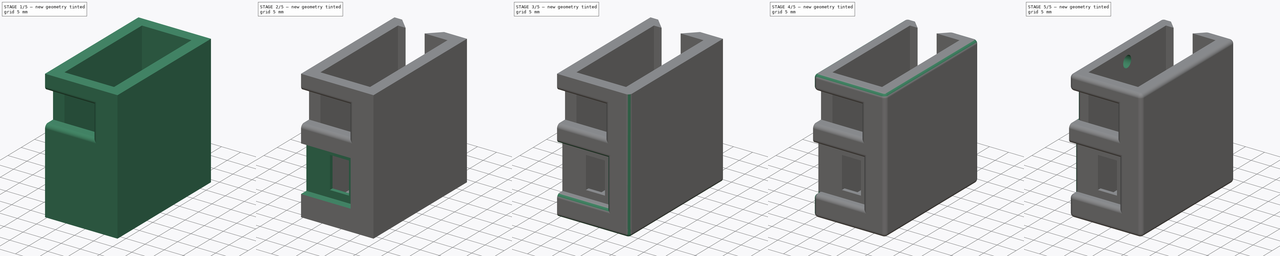
[diagram: build sequence overview — one tinted view per stage of 5, left to right]
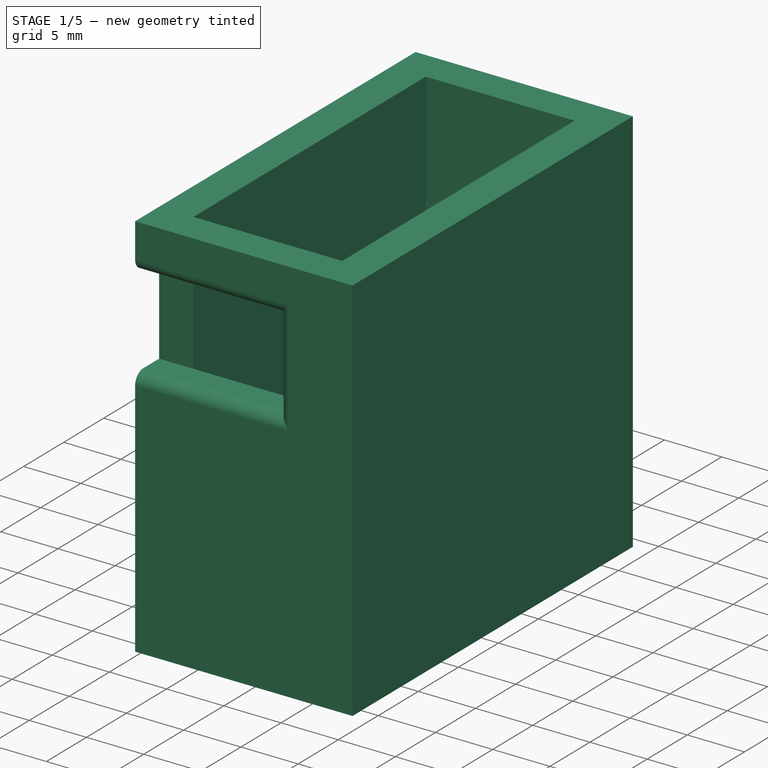
[diagram: stage 1 of 5 — iso view after this stage's code; geometry added in this stage tinted green]
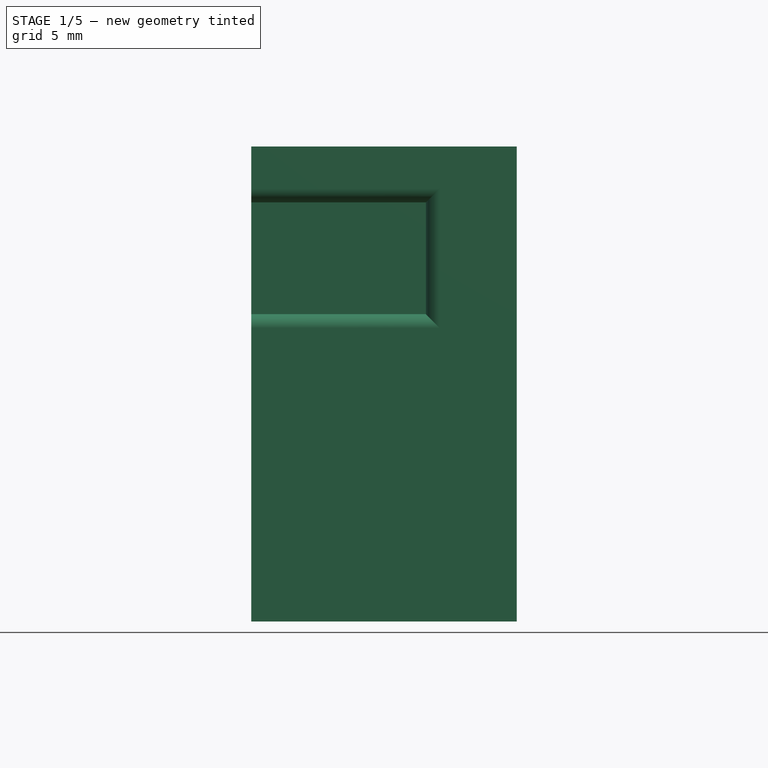
[diagram: stage 1 of 5 — front view after this stage's code; geometry added in this stage tinted green]
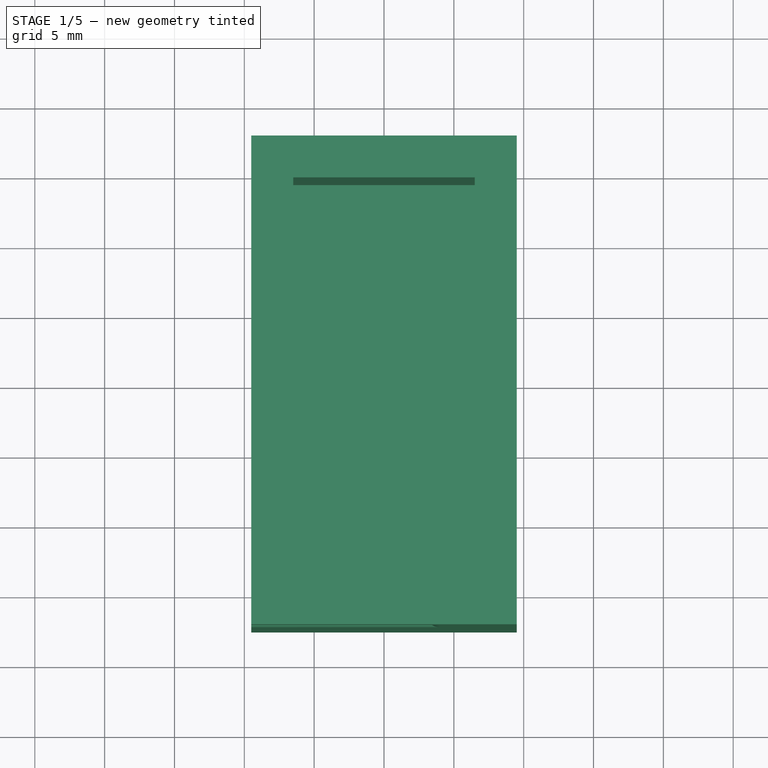
[diagram: stage 1 of 5 — top view after this stage's code; geometry added in this stage tinted green]
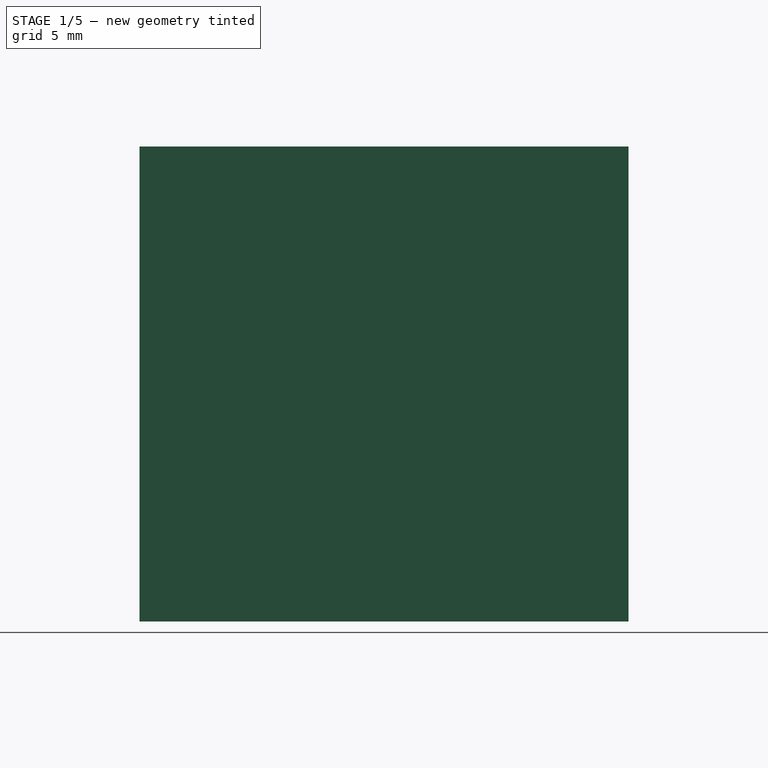
[diagram: stage 1 of 5 — right view after this stage's code; geometry added in this stage tinted green]
FCSTD DOCUMENT  (FreeCAD 0.19R24366 (Git))
Label: Mic Case
License: All rights reserved
LicenseURL: http://en.wikipedia.org/wiki/All_rights_reserved
objects: PartDesign::Fillet×10, Sketcher::SketchObject×7, PartDesign::Pocket×5, PartDesign::Pad×2, PartDesign::Chamfer×2, PartDesign::Body×1
note: 46 computed .brp shape members not serialized (recipe doc carries the construction recipe); baked Part::Feature solids carry a one-line shape summary decoded from their .brp

FEATURE [Sketcher::SketchObject] Sketch
  FullyConstrained = true
  MapMode = 5
  Support = -> [XY_Plane]
  sketch-geometry (4):
    g0: LineSegment StartX=-9.5 StartY=17.5 StartZ=0 EndX=9.5 EndY=17.5 EndZ=0
    g1: LineSegment StartX=9.5 StartY=17.5 StartZ=0 EndX=9.5 EndY=-17.5 EndZ=0
    g2: LineSegment StartX=9.5 StartY=-17.5 StartZ=0 EndX=-9.5 EndY=-17.5 EndZ=0
    g3: LineSegment StartX=-9.5 StartY=-17.5 StartZ=0 EndX=-9.5 EndY=17.5 EndZ=0
  constraints (11):
    c: Coincident(g0,g1)
    c: Coincident(g1,g2)
    c: Coincident(g2,g3)
    c: Coincident(g3,g0)
    c: Horizontal(g0)
    c: Horizontal(g2)
    c: Vertical(g1)
    c: Vertical(g3)
    c: Symmetric(g2,g0,g-1)
    c: DistanceY(g1,g1) = 35
    c: DistanceX(g0,g0) = 19
FEATURE [PartDesign::Pad] Pad  label="Bottom"
  Direction = (1,1,1)
  Length = 2
  Length2 = 100
  Profile = -> Sketch
  Type = 0
FEATURE [Sketcher::SketchObject] Sketch001
  ExternalGeometry = -> [Pad]
  FullyConstrained = true
  MapMode = 5
  Placement = pos=(0,0,2) rot=(0,0,1;0rad)
  Support = -> [Pad]
  sketch-geometry (8):
    g0: LineSegment StartX=-6.5 StartY=14.5 StartZ=0 EndX=6.5 EndY=14.5 EndZ=0
    g1: LineSegment StartX=6.5 StartY=14.5 StartZ=0 EndX=6.5 EndY=-14.5 EndZ=0
    g2: LineSegment StartX=6.5 StartY=-14.5 StartZ=0 EndX=-6.5 EndY=-14.5 EndZ=0
    g3: LineSegment StartX=-6.5 StartY=-14.5 StartZ=0 EndX=-6.5 EndY=14.5 EndZ=0
    g4: LineSegment StartX=-9.5 StartY=17.5 StartZ=0 EndX=9.5 EndY=17.5 EndZ=0
    g5: LineSegment StartX=9.5 StartY=17.5 StartZ=0 EndX=9.5 EndY=-17.5 EndZ=0
    g6: LineSegment StartX=9.5 StartY=-17.5 StartZ=0 EndX=-9.5 EndY=-17.5 EndZ=0
    g7: LineSegment StartX=-9.5 StartY=-17.5 StartZ=0 EndX=-9.5 EndY=17.5 EndZ=0
  constraints (21):
    c: Coincident(g0,g1)
    c: Coincident(g1,g2)
    c: Coincident(g2,g3)
    c: Coincident(g3,g0)
    c: Horizontal(g0)
    c: Horizontal(g2)
    c: Vertical(g1)
    c: Vertical(g3)
    c: Symmetric(g2,g0,g-1)
    c: DistanceX(g0,g0) = 13
    c: DistanceY(g1,g1) = 29
    c: Coincident(g4,g5)
    c: Coincident(g5,g6)
    c: Coincident(g6,g7)
    c: Coincident(g7,g4)
    c: Horizontal(g4)
    c: Horizontal(g6)
    c: Vertical(g5)
    c: Vertical(g7)
    c: Coincident(g4,g-6)
    c: Coincident(g5,g-5)
FEATURE [PartDesign::Pad] Pad001  label="Main Body"
  BaseFeature = -> Pad
  Direction = (1,1,1)
  Length = 32
  Length2 = 100
  Profile = -> Sketch001
  Type = 0
FEATURE [Sketcher::SketchObject] Sketch002
  ExternalGeometry = -> [Pad001]
  FullyConstrained = true
  MapMode = 5
  Placement = pos=(0,-17.5,0) rot=(1,0,0;1.5708rad)
  Support = -> [Pad001]
  sketch-geometry (7):
    g0: LineSegment StartX=-5 StartY=2 StartZ=0 EndX=-5 EndY=26 EndZ=0
    g1: LineSegment StartX=-9.5 StartY=30 StartZ=0 EndX=3 EndY=30 EndZ=0
    g2: LineSegment StartX=3 StartY=30 StartZ=0 EndX=3 EndY=22 EndZ=0
    g3: LineSegment StartX=3 StartY=22 StartZ=0 EndX=-9.5 EndY=22 EndZ=0
    g4: LineSegment StartX=-9.5 StartY=22 StartZ=0 EndX=-9.5 EndY=30 EndZ=0
    g5: GeomPoint X=3 Y=26 Z=0
    g6: LineSegment StartX=-5 StartY=26 StartZ=0 EndX=3 EndY=26 EndZ=0
  constraints (19):
    c: PointOnObject(g0,g-3)
    c: Vertical(g0)
    c: DistanceY(g0,g0) = 24
    c: DistanceX(g-3,g0) = 4.5
    c: Coincident(g1,g2)
    c: Coincident(g2,g3)
    c: Coincident(g3,g4)
    c: Coincident(g4,g1)
    c: Horizontal(g1)
    c: Horizontal(g3)
    c: Vertical(g2)
    c: Vertical(g4)
    c: PointOnObject(g1,g-4)
    c: DistanceY(g4,g4) = 8
    c: Symmetric(g2,g1,g5)
    c: Coincident(g6,g0)
    c: Coincident(g6,g5)
    c: Horizontal(g6)
    c: DistanceX(g6,g6) = 8
FEATURE [PartDesign::Pocket] Pocket  label="Headphone Cutout"
  BaseFeature = -> Pad001
  Length = 3
  Length2 = 100
  Profile = -> Sketch002
  Type = 0
FEATURE [PartDesign::Fillet] Fillet
  Base = -> Pocket [Edge30,Edge31,Edge29]
  BaseFeature = -> Pocket
  Radius = 1
  SupportTransform = false
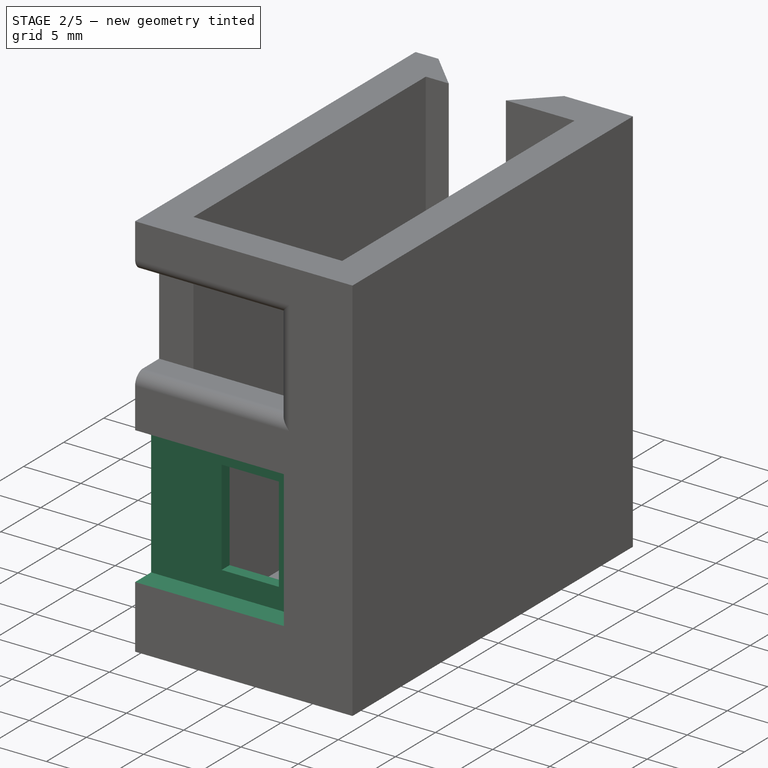
[diagram: stage 2 of 5 — iso view after this stage's code; geometry added in this stage tinted green]
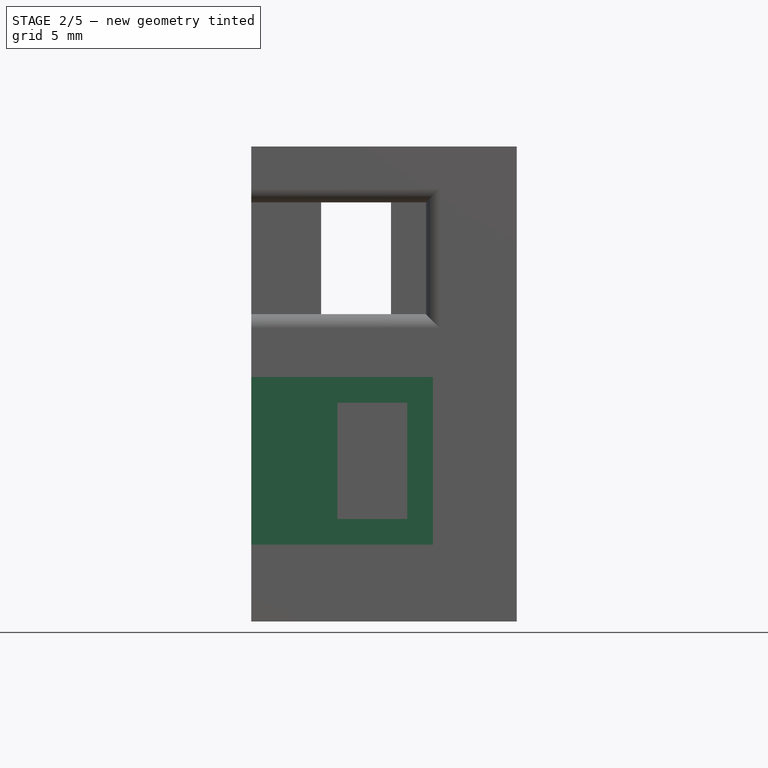
[diagram: stage 2 of 5 — front view after this stage's code; geometry added in this stage tinted green]
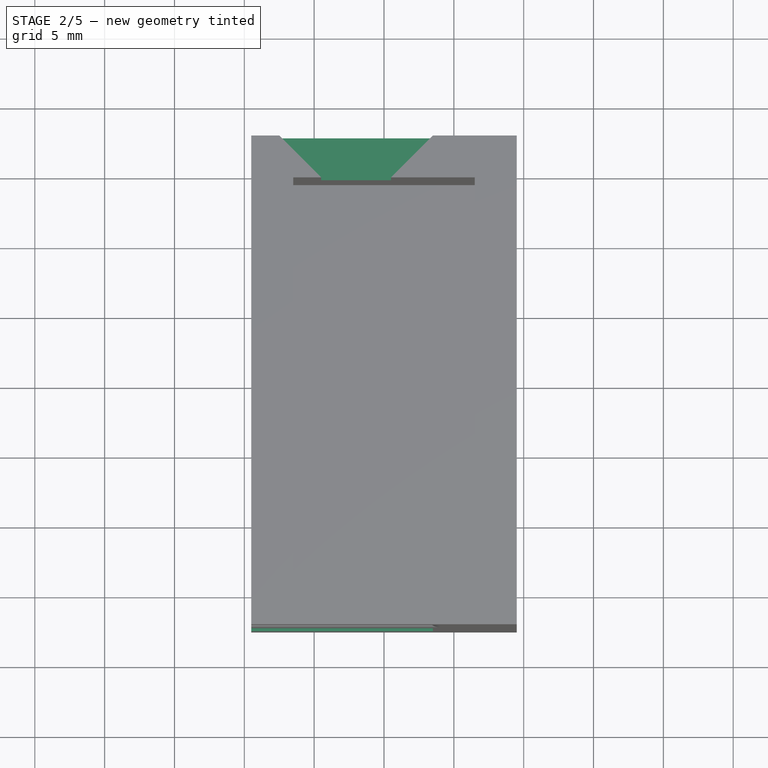
[diagram: stage 2 of 5 — top view after this stage's code; geometry added in this stage tinted green]
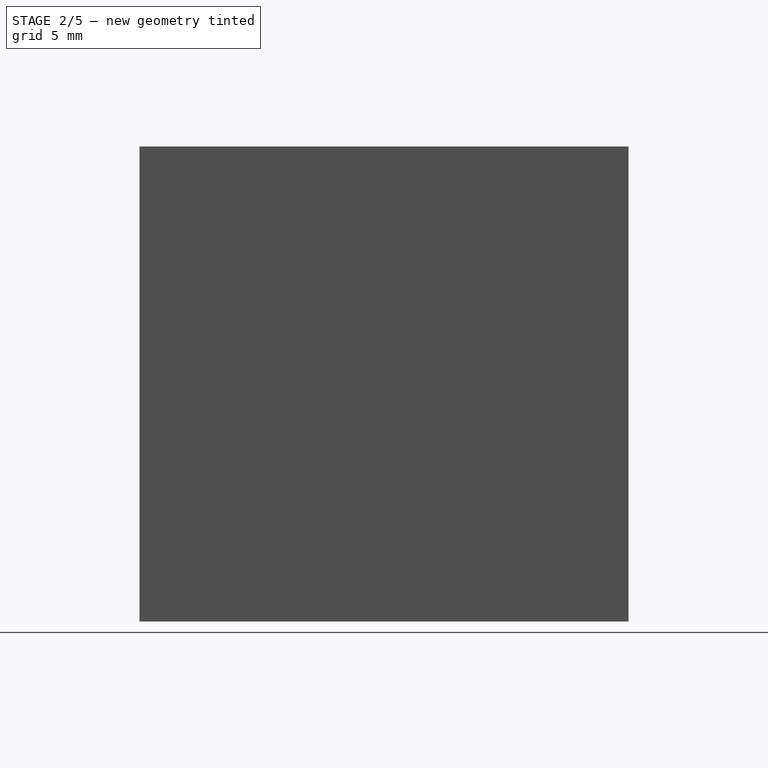
[diagram: stage 2 of 5 — right view after this stage's code; geometry added in this stage tinted green]
FEATURE [Sketcher::SketchObject] Sketch003
  ExternalGeometry = -> [Fillet]
  FullyConstrained = true
  MapMode = 5
  Placement = pos=(0,-17.5,0) rot=(1,0,0;1.5708rad)
  Support = -> [Fillet]
  sketch-geometry (7):
    g0: LineSegment StartX=-3.15 StartY=2 StartZ=0 EndX=-3.15 EndY=11.5 EndZ=0
    g1: LineSegment StartX=-9.5 StartY=17.5 StartZ=0 EndX=3.5 EndY=17.5 EndZ=0
    g2: LineSegment StartX=3.5 StartY=17.5 StartZ=0 EndX=3.5 EndY=5.5 EndZ=0
    g3: LineSegment StartX=3.5 StartY=5.5 StartZ=0 EndX=-9.5 EndY=5.5 EndZ=0
    g4: LineSegment StartX=-9.5 StartY=5.5 StartZ=0 EndX=-9.5 EndY=17.5 EndZ=0
    g5: LineSegment StartX=-3.15 StartY=11.5 StartZ=0 EndX=3.5 EndY=17.5 EndZ=0
    g6: LineSegment StartX=-3.15 StartY=11.5 StartZ=0 EndX=3.5 EndY=5.5 EndZ=0
  constraints (20):
    c: PointOnObject(g0,g-3)
    c: Vertical(g0)
    c: DistanceY(g0,g0) = 9.5
    c: Coincident(g1,g2)
    c: Coincident(g2,g3)
    c: Coincident(g3,g4)
    c: Coincident(g4,g1)
    c: Horizontal(g1)
    c: Horizontal(g3)
    c: Vertical(g2)
    c: Vertical(g4)
    c: PointOnObject(g1,g-4)
    c: DistanceX(g1,g1) = 13
    c: DistanceY(g2,g2) = 12
    c: Coincident(g5,g0)
    c: Coincident(g5,g1)
    c: Coincident(g6,g5)
    c: Coincident(g6,g2)
    c: Equal(g5,g6)
    c: DistanceX(g-4,g0) = 6.35
FEATURE [PartDesign::Pocket] Pocket001  label="USB Outer Pocket"
  BaseFeature = -> Fillet
  Length = 2
  Length2 = 100
  Profile = -> Sketch003
  Type = 0
FEATURE [Sketcher::SketchObject] Sketch004
  ExternalGeometry = -> [Pocket001]
  FullyConstrained = true
  MapMode = 5
  Placement = pos=(0,-15.5,4.7e-15) rot=(1,0,0;1.5708rad)
  Support = -> [Pocket001]
  sketch-geometry (6):
    g0: LineSegment StartX=-3.33848 StartY=15.6615 StartZ=0 EndX=1.66152 EndY=15.6615 EndZ=0
    g1: LineSegment StartX=1.66152 StartY=15.6615 StartZ=0 EndX=1.66152 EndY=7.33848 EndZ=0
    g2: LineSegment StartX=1.66152 StartY=7.33848 StartZ=0 EndX=-3.33848 EndY=7.33848 EndZ=0
    g3: LineSegment StartX=-3.33848 StartY=7.33848 StartZ=0 EndX=-3.33848 EndY=15.6615 EndZ=0
    g4: LineSegment StartX=1.66152 StartY=15.6615 StartZ=0 EndX=3.5 EndY=17.5 EndZ=0
    g5: LineSegment StartX=1.66152 StartY=7.33848 StartZ=0 EndX=3.5 EndY=5.5 EndZ=0
  constraints (16):
    c: Coincident(g1,g2)
    c: Coincident(g2,g3)
    c: Coincident(g3,g0)
    c: Horizontal(g0)
    c: Horizontal(g2)
    c: Vertical(g3)
    c: DistanceX(g0,g0) = 5
    c: Coincident(g5,g1)
    c: Coincident(g5,g-5)
    c: Equal(g5,g4)
    c: Vertical(g1)
    c: Coincident(g1,g0)
    c: Coincident(g1,g4)
    c: Coincident(g4,g-4)
    c: Distance(g4) = 2.6
    c: Angle(g4,g-3) = 0.785398
FEATURE [PartDesign::Pocket] Pocket002  label="USB Inner Cutout"
  BaseFeature = -> Pocket001
  Length = 1
  Length2 = 100
  Profile = -> Sketch004
  Type = 0
FEATURE [Sketcher::SketchObject] Sketch005
  ExternalGeometry = -> [Pocket002]
  FullyConstrained = true
  MapMode = 5
  Placement = pos=(0,17.5,0) rot=(0,0.707107,0.707107;3.14159rad)
  Support = -> [Pocket002]
  sketch-geometry (4):
    g0: LineSegment StartX=-0.5 StartY=34 StartZ=0 EndX=4.5 EndY=34 EndZ=0
    g1: LineSegment StartX=4.5 StartY=34 StartZ=0 EndX=4.5 EndY=22 EndZ=0
    g2: LineSegment StartX=4.5 StartY=22 StartZ=0 EndX=-0.5 EndY=22 EndZ=0
    g3: LineSegment StartX=-0.5 StartY=22 StartZ=0 EndX=-0.5 EndY=34 EndZ=0
  constraints (12):
    c: Coincident(g0,g1)
    c: Coincident(g1,g2)
    c: Coincident(g2,g3)
    c: Coincident(g3,g0)
    c: Horizontal(g0)
    c: Horizontal(g2)
    c: Vertical(g1)
    c: Vertical(g3)
    c: PointOnObject(g0,g-3)
    c: DistanceX(g0,g-3) = 5
    c: DistanceX(g0,g0) = 5
    c: DistanceY(g1,g1) = 12
FEATURE [PartDesign::Pocket] Pocket003  label="Switch Cutout"
  BaseFeature = -> Pocket002
  Length = 3
  Length2 = 100
  Profile = -> Sketch005
  Type = 0
FEATURE [PartDesign::Chamfer] Chamfer
  Angle = 45
  Base = -> Pocket003 [Edge50,Edge52]
  BaseFeature = -> Pocket003
  ChamferType = 0
  FlipDirection = false
  Size = 2.999
  Size2 = 1
  SupportTransform = false
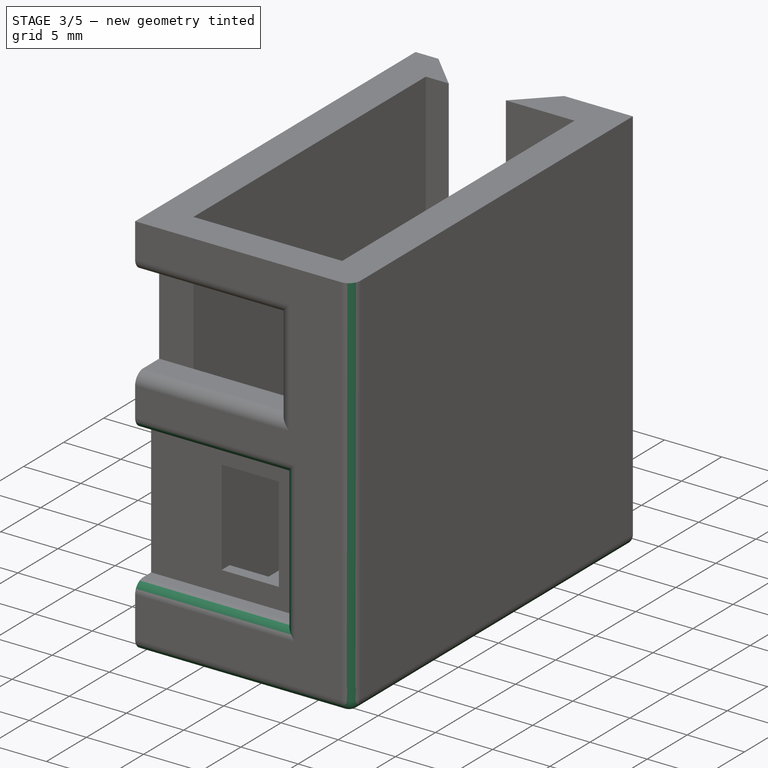
[diagram: stage 3 of 5 — iso view after this stage's code; geometry added in this stage tinted green]
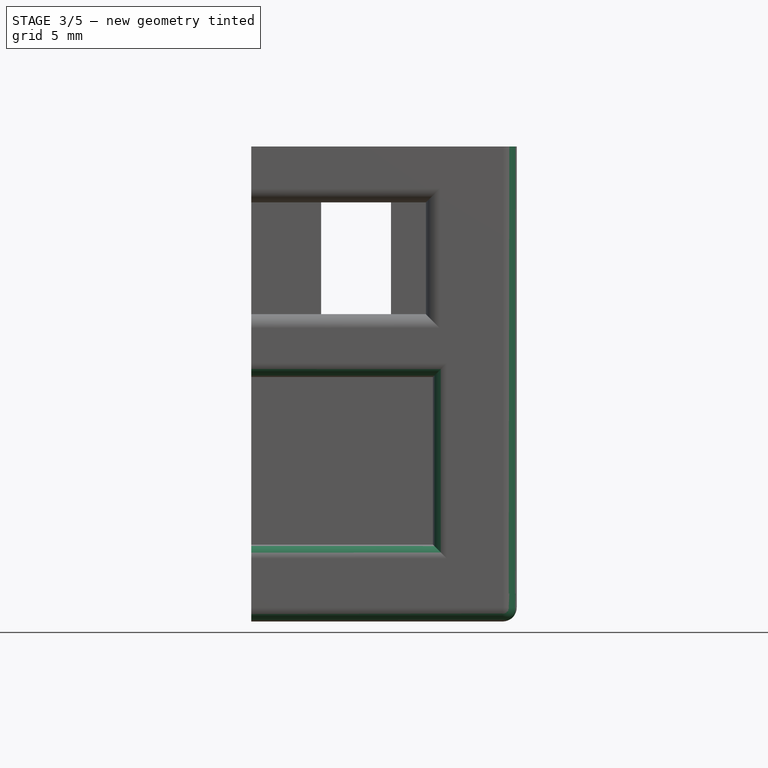
[diagram: stage 3 of 5 — front view after this stage's code; geometry added in this stage tinted green]
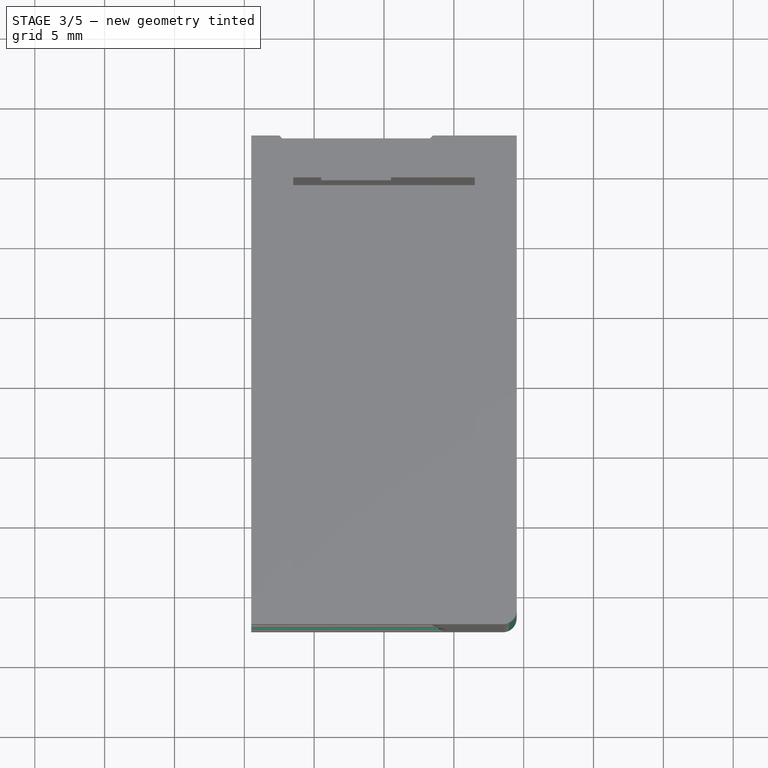
[diagram: stage 3 of 5 — top view after this stage's code; geometry added in this stage tinted green]
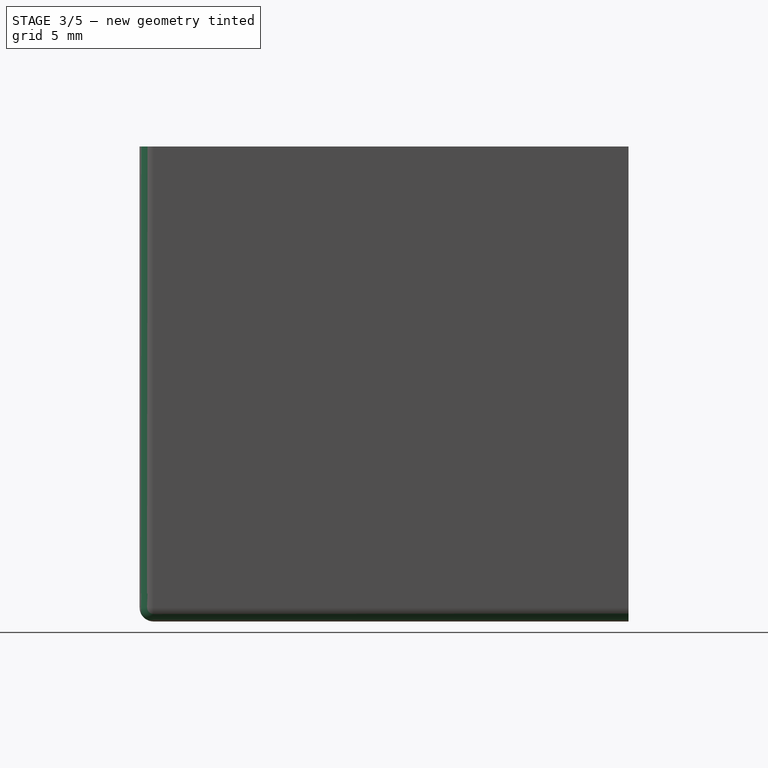
[diagram: stage 3 of 5 — right view after this stage's code; geometry added in this stage tinted green]
FEATURE [PartDesign::Fillet] Fillet001
  Base = -> Chamfer [Edge50,Edge49,Edge48]
  BaseFeature = -> Chamfer
  Radius = 1
  SupportTransform = false
FEATURE [PartDesign::Fillet] Fillet002
  Base = -> Fillet001 [Edge73]
  BaseFeature = -> Fillet001
  Radius = 1
  SupportTransform = false
FEATURE [PartDesign::Fillet] Fillet003
  Base = -> Fillet002 [Edge26]
  BaseFeature = -> Fillet002
  Radius = 1
  SupportTransform = false
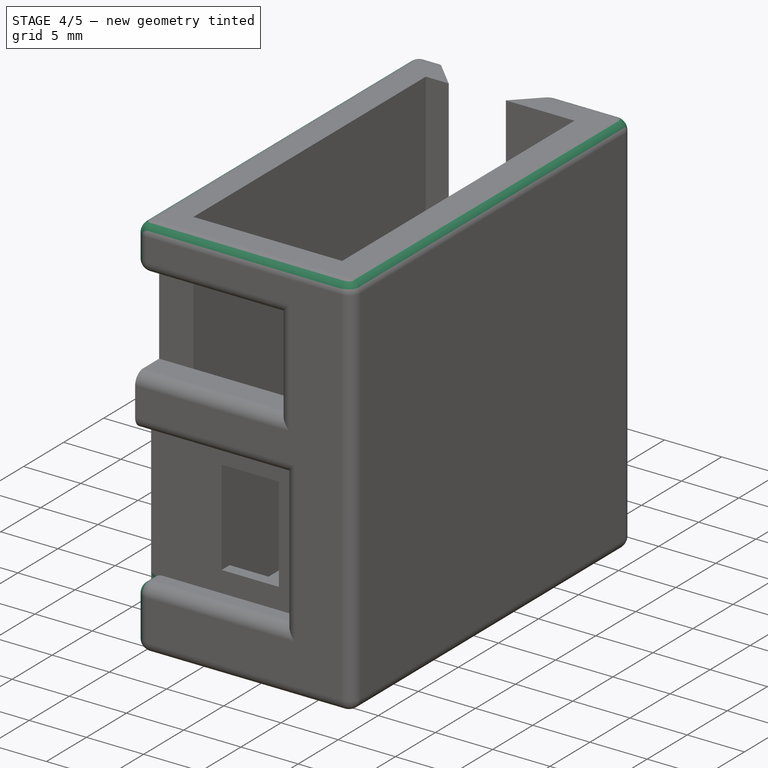
[diagram: stage 4 of 5 — iso view after this stage's code; geometry added in this stage tinted green]
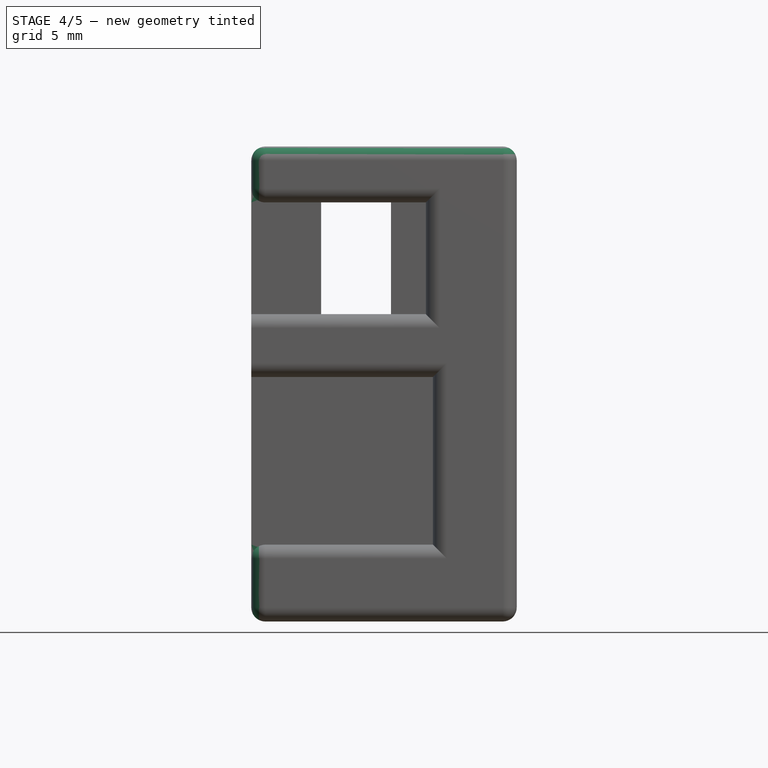
[diagram: stage 4 of 5 — front view after this stage's code; geometry added in this stage tinted green]
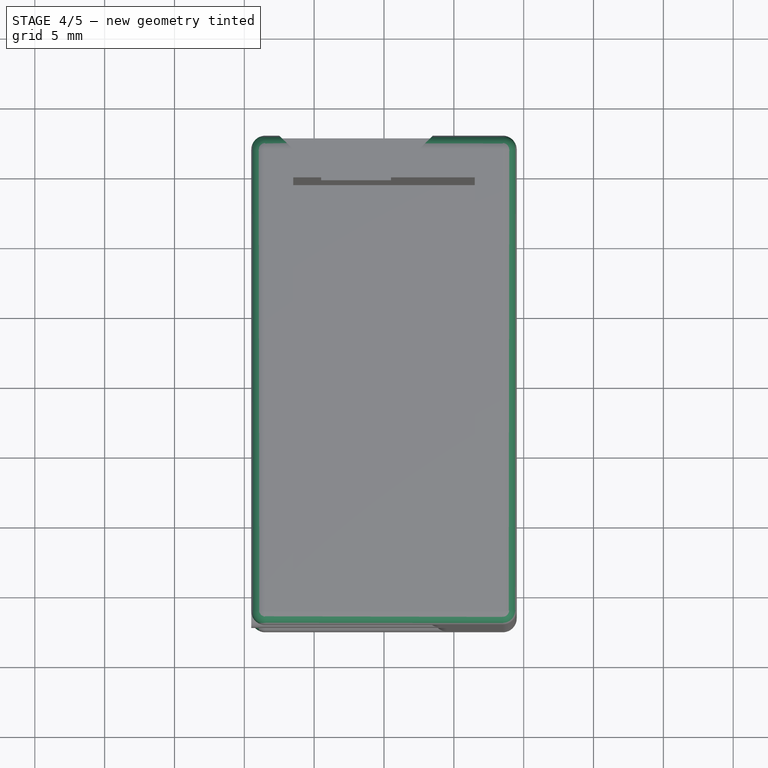
[diagram: stage 4 of 5 — top view after this stage's code; geometry added in this stage tinted green]
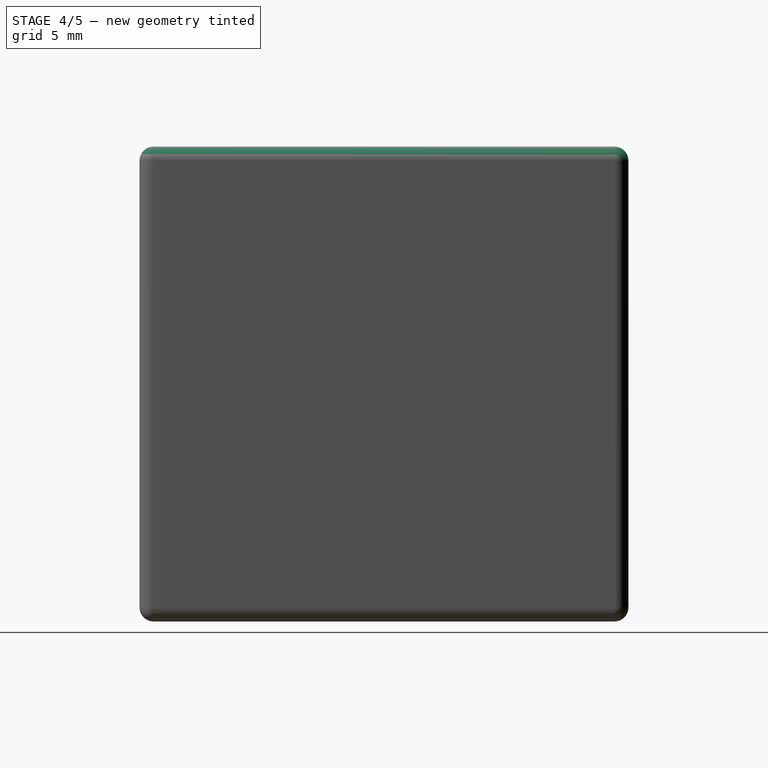
[diagram: stage 4 of 5 — right view after this stage's code; geometry added in this stage tinted green]
FEATURE [PartDesign::Fillet] Fillet004
  Base = -> Fillet003 [Edge28]
  BaseFeature = -> Fillet003
  Radius = 1
  SupportTransform = false
FEATURE [PartDesign::Fillet] Fillet005
  Base = -> Fillet004 [Edge1]
  BaseFeature = -> Fillet004
  Radius = 1
  SupportTransform = false
FEATURE [PartDesign::Fillet] Fillet006
  Base = -> Fillet005 [Edge36]
  BaseFeature = -> Fillet005
  Radius = 1
  SupportTransform = false
FEATURE [PartDesign::Fillet] Fillet007
  Base = -> Fillet006 [Edge1]
  BaseFeature = -> Fillet006
  Radius = 1
  SupportTransform = false
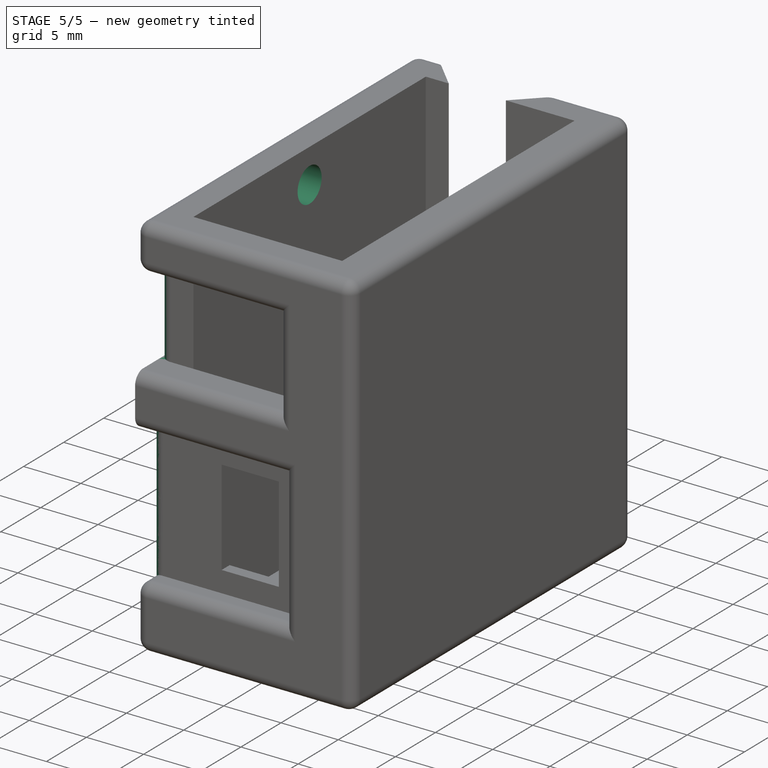
[diagram: stage 5 of 5 — iso view after this stage's code; geometry added in this stage tinted green]
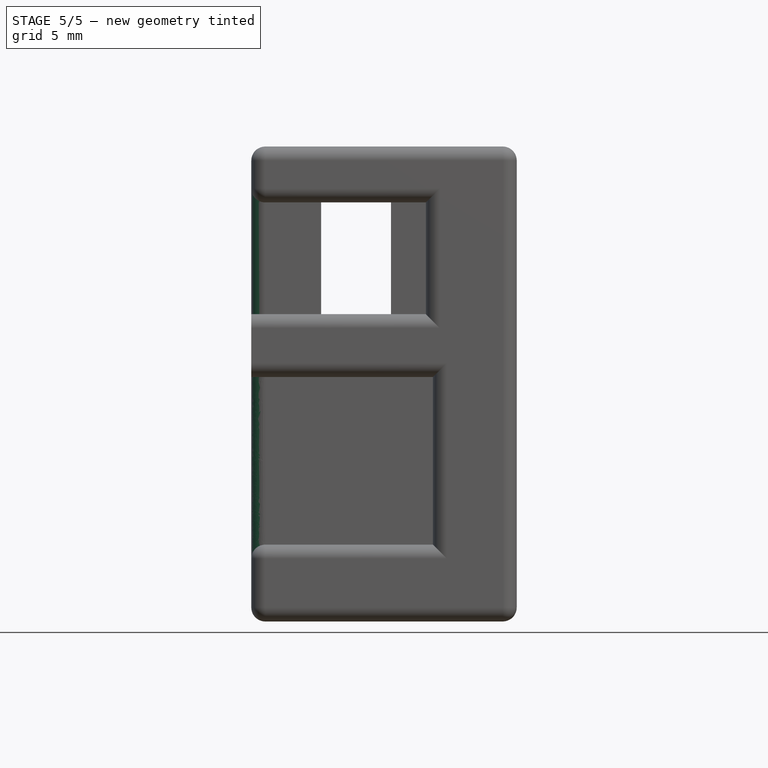
[diagram: stage 5 of 5 — front view after this stage's code; geometry added in this stage tinted green]
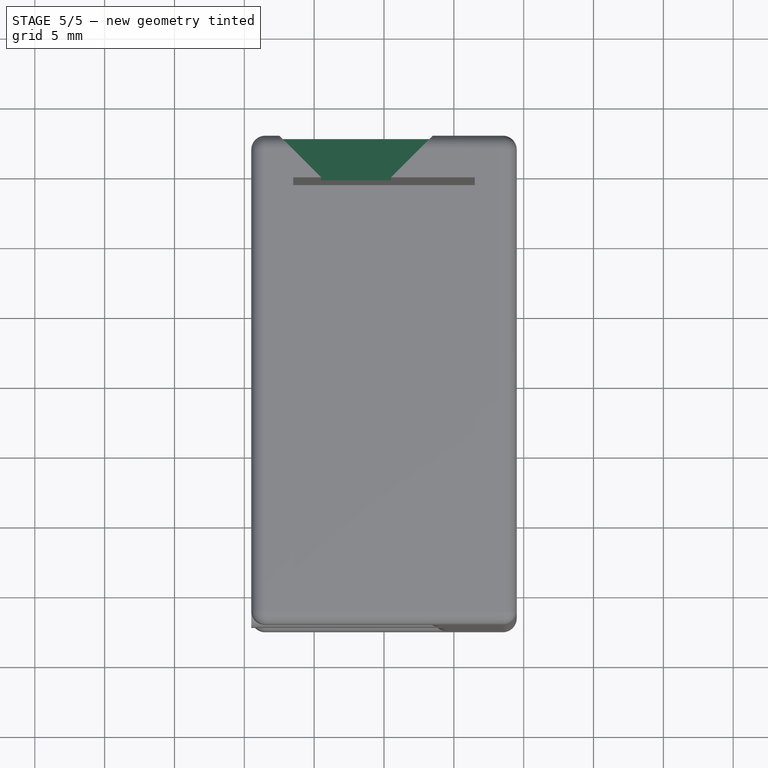
[diagram: stage 5 of 5 — top view after this stage's code; geometry added in this stage tinted green]
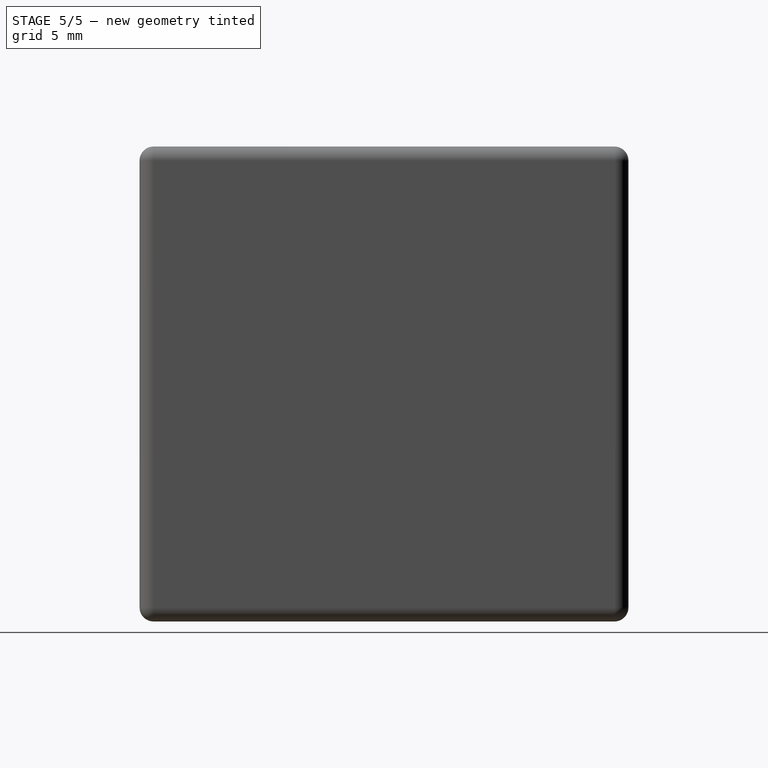
[diagram: stage 5 of 5 — right view after this stage's code; geometry added in this stage tinted green]
FEATURE [PartDesign::Fillet] Fillet008
  Base = -> Fillet007 [Edge11]
  BaseFeature = -> Fillet007
  Radius = 1
  SupportTransform = false
FEATURE [PartDesign::Fillet] Fillet009
  Base = -> Fillet008 [Edge16]
  BaseFeature = -> Fillet008
  Radius = 1
  SupportTransform = false
FEATURE [PartDesign::Chamfer] Chamfer001
  Angle = 45
  Base = -> Fillet009 [Edge124]
  BaseFeature = -> Fillet009
  ChamferType = 0
  FlipDirection = false
  Size = 2.999
  Size2 = 1
  SupportTransform = false
FEATURE [Sketcher::SketchObject] Sketch006
  ExternalGeometry = -> [Chamfer001]
  FullyConstrained = true
  MapMode = 5
  Placement = pos=(-9.5,0,0) rot=(0.57735,-0.57735,-0.57735;2.0944rad)
  Support = -> [Chamfer001]
  sketch-geometry (2):
    g0: Circle CenterX=0 CenterY=31 CenterZ=0 NormalX=0 NormalY=0 NormalZ=1 AngleXU=0 Radius=1.5
    g1: LineSegment StartX=0 StartY=31 StartZ=0 EndX=0 EndY=34 EndZ=0
  constraints (6):
    c: PointOnObject(g0,g-2)
    c: Coincident(g1,g0)
    c: PointOnObject(g1,g-3)
    c: Vertical(g1)
    c: DistanceY(g1,g1) = 3
    c: Radius(g0) = 1.5
FEATURE [PartDesign::Pocket] Pocket004
  BaseFeature = -> Chamfer001
  Length = 5
  Length2 = 100
  Profile = -> Sketch006
  Type = 0
FEATURE [PartDesign::Body] Body
  Group = -> [Sketch,Pad,Sketch001,Pad001,Sketch002,Pocket,Fillet,Sketch003,Pocket001,Sketch004,Pocket002,Sketch005,Pocket003,Chamfer,Fillet001,Fillet002,Fillet003,Fillet004,Fillet005,Fillet006,Fillet007,Fillet008,Fillet009,Chamfer001,Sketch006,Pocket004]
  Origin = -> Origin
  Tip = -> Pocket004
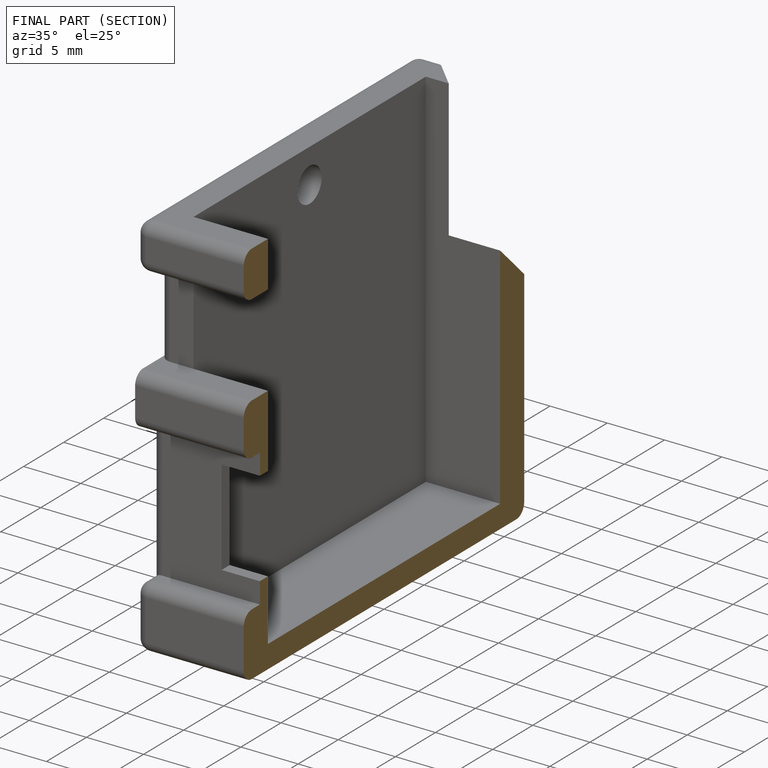
[diagram: finished part — half-section view (interior)]
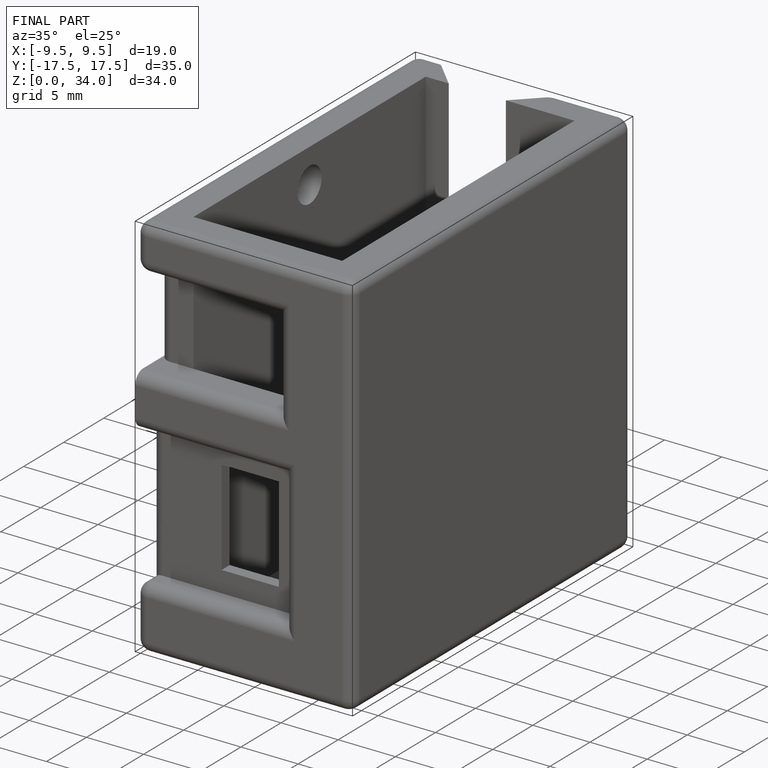
[diagram: finished part — iso view with bounding-box wireframe]
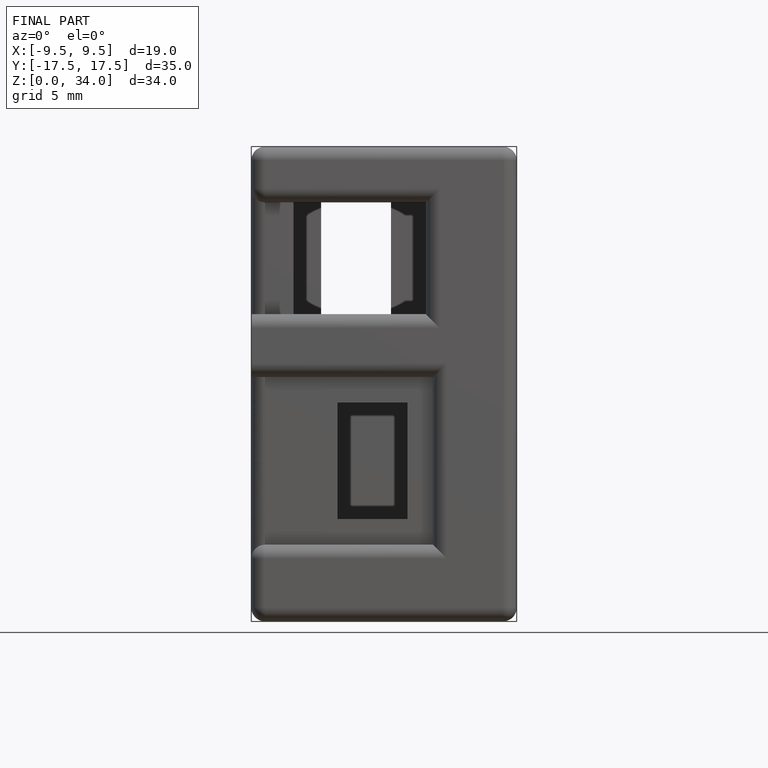
[diagram: finished part — front view with bounding-box wireframe]
